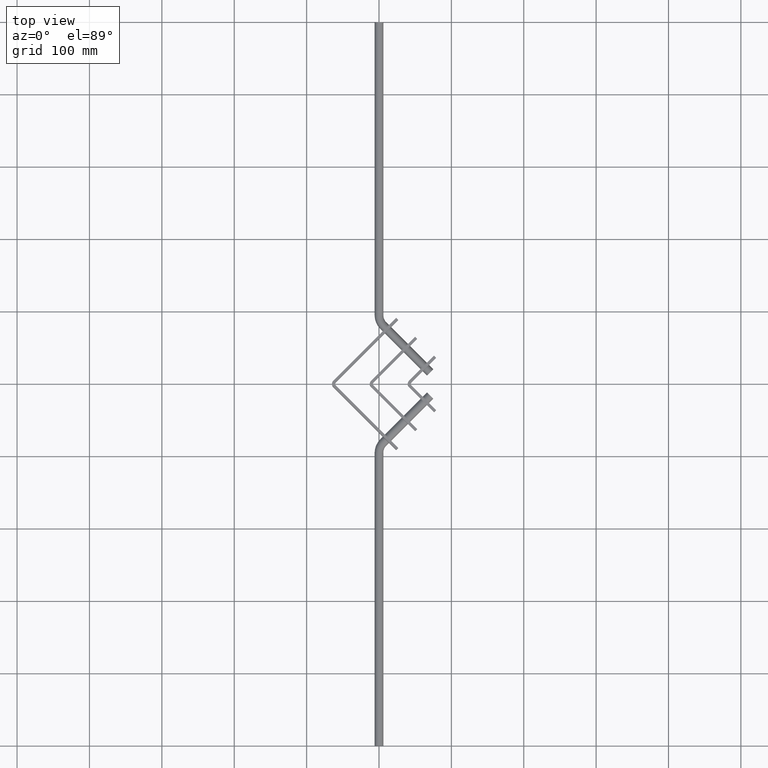
[diagram: clean part render]
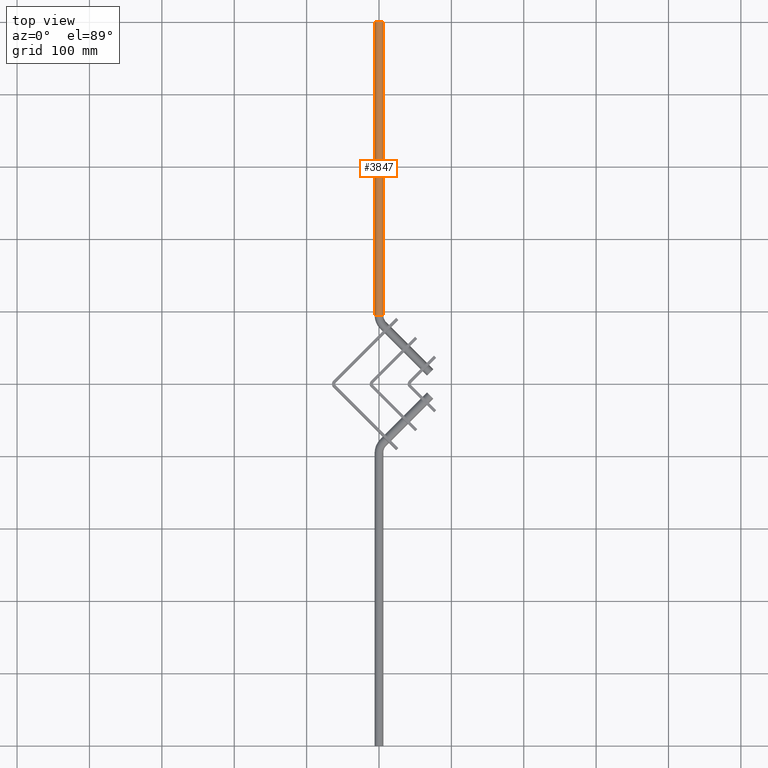
[diagram: same view with one face highlighted and labeled with its STEP entity id]
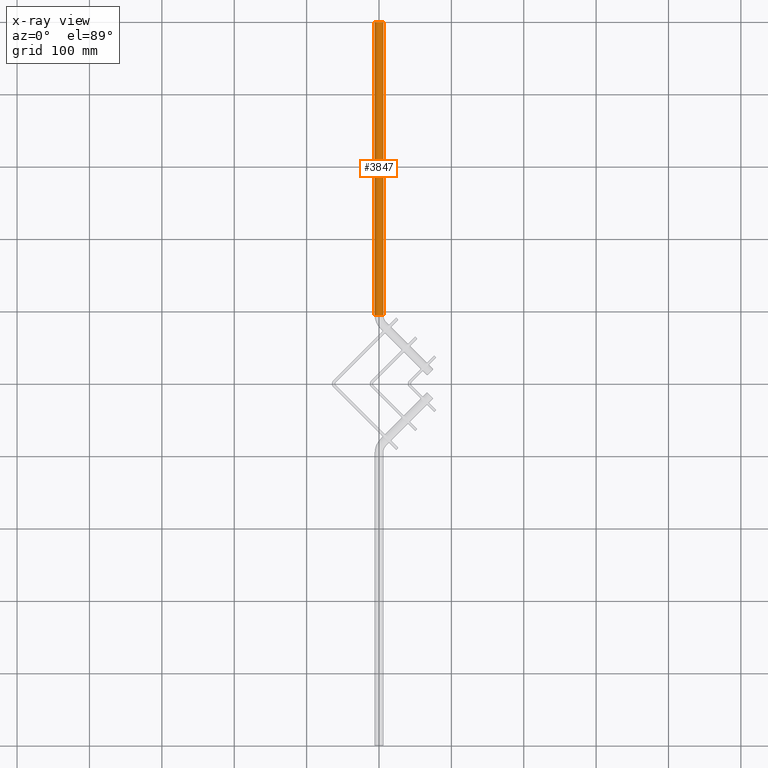
[diagram: x-ray of the same camera — body ghosted, the highlighted face saturated]
A machine part, top view. The second image highlights one B-rep face of the part: STEP entity #3847.
The next image is the same camera in x-ray: the body ghosted, the highlighted face saturated — about 0% of this face is hidden behind the body in this view.
In plain terms, the highlighted cylindrical surface (edge-blend (fillet) strip) has radius 6 mm, axis along (-0, 1, -0).
Its self-contained STEP definition (entity closure, byte-faithful):
#5 = DIRECTION ( 'NONE',  ( -1.197160806483219500E-016, 1.000000000000000000, -0.0000000000000000000 ) ) ;
#39 = VERTEX_POINT ( 'NONE', #1389 ) ;
#81 = EDGE_CURVE ( 'NONE', #126, #39, #1821, .T. ) ;
#126 = VERTEX_POINT ( 'NONE', #1527 ) ;
#164 = DIRECTION ( 'NONE',  ( 0.0000000000000000000, 1.000000000000000000, 0.0000000000000000000 ) ) ;
#287 = AXIS2_PLACEMENT_3D ( 'NONE', #3716, #164, #4294 ) ;
#557 = DIRECTION ( 'NONE',  ( -1.197160806483219500E-016, 1.000000000000000000, -0.0000000000000000000 ) ) ;
#1167 = LINE ( 'NONE', #2404, #2584 ) ;
#1357 = EDGE_LOOP ( 'NONE', ( #3074, #5191, #5458, #7149 ) ) ;
#1389 = CARTESIAN_POINT ( 'NONE',  ( 6.000000000000000900, 1000.000000000000000, 7.347880794884120700E-016 ) ) ;
#1527 = CARTESIAN_POINT ( 'NONE',  ( -6.000000000000000900, 1000.000000000000000, 0.0000000000000000000 ) ) ;
#1821 = CIRCLE ( 'NONE', #6267, 6.000000000000000900 ) ;
#2212 = DIRECTION ( 'NONE',  ( 0.0000000000000000000, 0.0000000000000000000, 1.000000000000000000 ) ) ;
#2218 = DIRECTION ( 'NONE',  ( 0.0000000000000000000, 1.000000000000000000, 0.0000000000000000000 ) ) ;
#2244 = CARTESIAN_POINT ( 'NONE',  ( 0.0000000000000000000, 1000.000000000000000, 0.0000000000000000000 ) ) ;
#2299 = AXIS2_PLACEMENT_3D ( 'NONE', #3857, #2724, #4434 ) ;
#2401 = EDGE_CURVE ( 'NONE', #3295, #4648, #4728, .T. ) ;
#2404 = CARTESIAN_POINT ( 'NONE',  ( -5.999999999999952000, 595.0000000000000000, 0.0000000000000000000 ) ) ;
#2584 = VECTOR ( 'NONE', #557, 1000.000000000000000 ) ;
#2724 = DIRECTION ( 'NONE',  ( -1.197160806483219500E-016, 1.000000000000000000, -0.0000000000000000000 ) ) ;
#3003 = CARTESIAN_POINT ( 'NONE',  ( 6.000000000000049700, 595.0000000000000000, 7.347880794884120700E-016 ) ) ;
#3074 = ORIENTED_EDGE ( 'NONE', *, *, #2401, .T. ) ;
#3280 = FACE_OUTER_BOUND ( 'NONE', #1357, .T. ) ;
#3295 = VERTEX_POINT ( 'NONE', #3398 ) ;
#3398 = CARTESIAN_POINT ( 'NONE',  ( -5.999999999999952000, 595.0000000000000000, 0.0000000000000000000 ) ) ;
#3716 = CARTESIAN_POINT ( 'NONE',  ( 4.848501266257038900E-014, 595.0000000000000000, 0.0000000000000000000 ) ) ;
#3727 = VECTOR ( 'NONE', #5, 1000.000000000000000 ) ;
#3847 = ADVANCED_FACE ( 'NONE', ( #3280 ), #4633, .T. ) ;
#3857 = CARTESIAN_POINT ( 'NONE',  ( 4.848501266257038900E-014, 595.0000000000000000, 0.0000000000000000000 ) ) ;
#3905 = LINE ( 'NONE', #3003, #3727 ) ;
#4006 = EDGE_CURVE ( 'NONE', #3295, #126, #1167, .T. ) ;
#4054 = EDGE_CURVE ( 'NONE', #4648, #39, #3905, .T. ) ;
#4294 = DIRECTION ( 'NONE',  ( 0.0000000000000000000, 0.0000000000000000000, 1.000000000000000000 ) ) ;
#4434 = DIRECTION ( 'NONE',  ( -1.000000000000000000, 0.0000000000000000000, 0.0000000000000000000 ) ) ;
#4633 = CYLINDRICAL_SURFACE ( 'NONE', #2299, 6.000000000000000900 ) ;
#4648 = VERTEX_POINT ( 'NONE', #5103 ) ;
#4728 = CIRCLE ( 'NONE', #287, 6.000000000000000900 ) ;
#5103 = CARTESIAN_POINT ( 'NONE',  ( 6.000000000000049700, 595.0000000000000000, 7.347880794884149300E-016 ) ) ;
#5191 = ORIENTED_EDGE ( 'NONE', *, *, #4054, .T. ) ;
#5458 = ORIENTED_EDGE ( 'NONE', *, *, #81, .F. ) ;
#6267 = AXIS2_PLACEMENT_3D ( 'NONE', #2244, #2218, #2212 ) ;
#7149 = ORIENTED_EDGE ( 'NONE', *, *, #4006, .F. ) ;